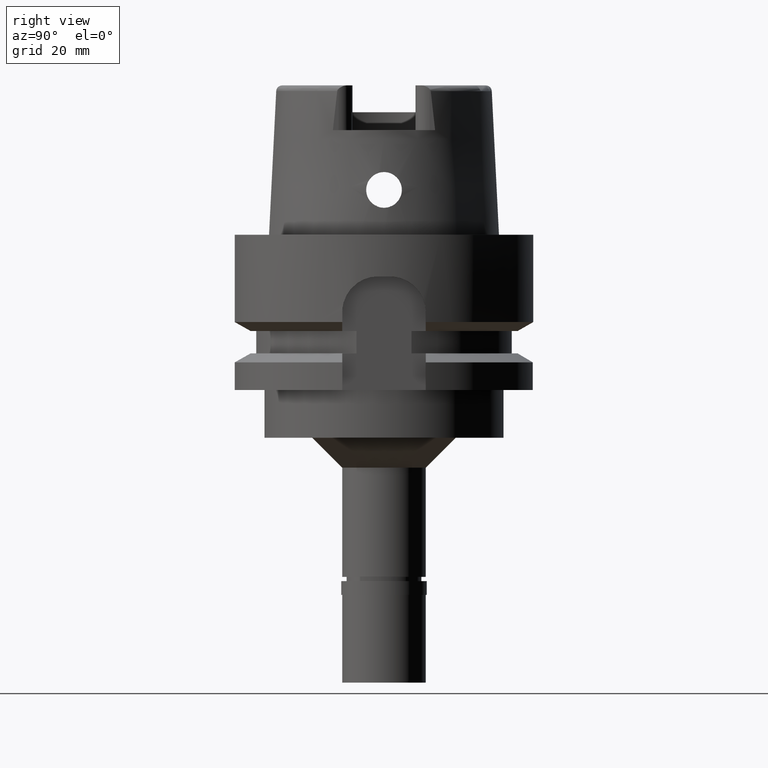
[diagram: clean part render]
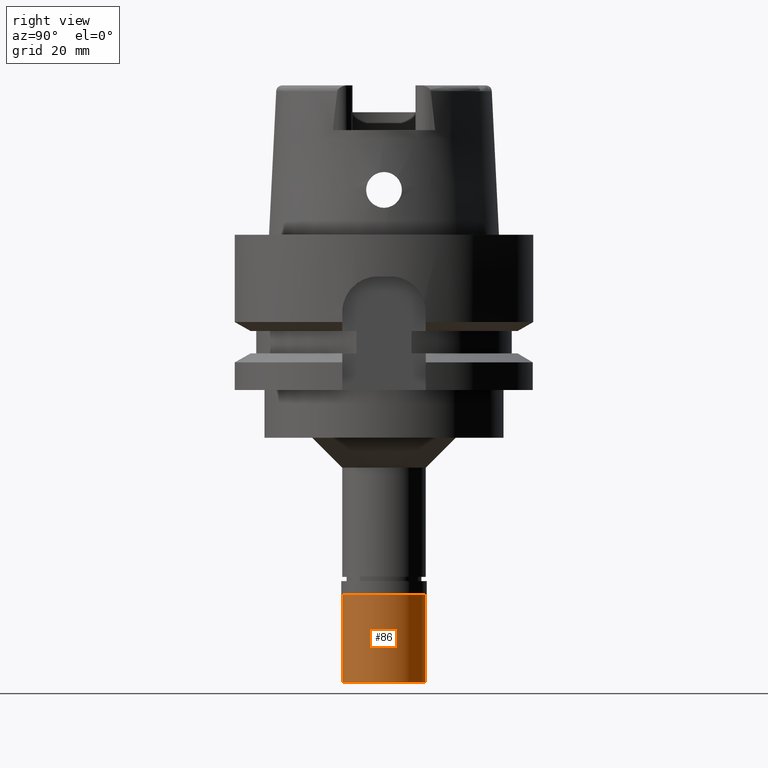
[diagram: same view with one face highlighted and labeled with its STEP entity id]
A machine part, right view. The second image highlights one B-rep face of the part: STEP entity #86.
In plain terms, the highlighted cylindrical surface (partial cylindrical patch) has radius 7 mm, axis along (0, 0, 1).
Its self-contained STEP definition (entity closure, byte-faithful):
#11 = VERTEX_POINT ( 'NONE', #2251 ) ;
#76 = AXIS2_PLACEMENT_3D ( 'NONE', #1211, #4178, #1189 ) ;
#86 = ADVANCED_FACE ( 'NONE', ( #3484 ), #3178, .T. ) ;
#152 = CIRCLE ( 'NONE', #76, 7.000000000000000000 ) ;
#166 = DIRECTION ( 'NONE',  ( 0.0000000000000000000, 1.000000000000000000, 0.0000000000000000000 ) ) ;
#242 = VERTEX_POINT ( 'NONE', #1030 ) ;
#403 = EDGE_CURVE ( 'NONE', #11, #2927, #1772, .T. ) ;
#494 = VECTOR ( 'NONE', #1404, 1000.000000000000000 ) ;
#505 = VECTOR ( 'NONE', #2833, 1000.000000000000000 ) ;
#538 = DIRECTION ( 'NONE',  ( 0.0000000000000000000, 0.0000000000000000000, 1.000000000000000000 ) ) ;
#836 = DIRECTION ( 'NONE',  ( 0.0000000000000000000, -1.000000000000000000, 0.0000000000000000000 ) ) ;
#895 = ORIENTED_EDGE ( 'NONE', *, *, #2823, .T. ) ;
#1030 = CARTESIAN_POINT ( 'NONE',  ( 0.0000000000000000000, 7.000000000000000000, -17.00000000000000000 ) ) ;
#1189 = DIRECTION ( 'NONE',  ( 0.0000000000000000000, 1.000000000000000000, 0.0000000000000000000 ) ) ;
#1211 = CARTESIAN_POINT ( 'NONE',  ( 0.0000000000000000000, 0.0000000000000000000, -2.299999999999999822 ) ) ;
#1339 = LINE ( 'NONE', #1706, #505 ) ;
#1404 = DIRECTION ( 'NONE',  ( 0.0000000000000000000, 0.0000000000000000000, -1.000000000000000000 ) ) ;
#1448 = CARTESIAN_POINT ( 'NONE',  ( 0.0000000000000000000, -7.000000000000000000, -17.00000000000000000 ) ) ;
#1571 = EDGE_CURVE ( 'NONE', #3091, #242, #1339, .T. ) ;
#1706 = CARTESIAN_POINT ( 'NONE',  ( 0.0000000000000000000, 7.000000000000000000, -2.299999999999999822 ) ) ;
#1772 = LINE ( 'NONE', #4787, #494 ) ;
#2046 = DIRECTION ( 'NONE',  ( 0.0000000000000000000, 0.0000000000000000000, 1.000000000000000000 ) ) ;
#2251 = CARTESIAN_POINT ( 'NONE',  ( 0.0000000000000000000, -7.000000000000000000, -2.299999999999999822 ) ) ;
#2376 = CARTESIAN_POINT ( 'NONE',  ( 0.0000000000000000000, 0.0000000000000000000, -17.00000000000000000 ) ) ;
#2713 = CARTESIAN_POINT ( 'NONE',  ( 0.0000000000000000000, 0.0000000000000000000, -17.85000000000000142 ) ) ;
#2823 = EDGE_CURVE ( 'NONE', #2927, #242, #4780, .T. ) ;
#2833 = DIRECTION ( 'NONE',  ( 0.0000000000000000000, 0.0000000000000000000, -1.000000000000000000 ) ) ;
#2927 = VERTEX_POINT ( 'NONE', #1448 ) ;
#2995 = CARTESIAN_POINT ( 'NONE',  ( 0.0000000000000000000, 7.000000000000000000, -2.299999999999999822 ) ) ;
#3035 = ORIENTED_EDGE ( 'NONE', *, *, #403, .T. ) ;
#3091 = VERTEX_POINT ( 'NONE', #2995 ) ;
#3178 = CYLINDRICAL_SURFACE ( 'NONE', #3722, 7.000000000000000000 ) ;
#3385 = EDGE_LOOP ( 'NONE', ( #3407, #3035, #895, #4049 ) ) ;
#3407 = ORIENTED_EDGE ( 'NONE', *, *, #4657, .T. ) ;
#3484 = FACE_OUTER_BOUND ( 'NONE', #3385, .T. ) ;
#3722 = AXIS2_PLACEMENT_3D ( 'NONE', #2713, #538, #166 ) ;
#4049 = ORIENTED_EDGE ( 'NONE', *, *, #1571, .F. ) ;
#4178 = DIRECTION ( 'NONE',  ( 0.0000000000000000000, 0.0000000000000000000, -1.000000000000000000 ) ) ;
#4467 = AXIS2_PLACEMENT_3D ( 'NONE', #2376, #2046, #836 ) ;
#4657 = EDGE_CURVE ( 'NONE', #3091, #11, #152, .T. ) ;
#4780 = CIRCLE ( 'NONE', #4467, 7.000000000000000000 ) ;
#4787 = CARTESIAN_POINT ( 'NONE',  ( 0.0000000000000000000, -7.000000000000000000, -2.299999999999999822 ) ) ;